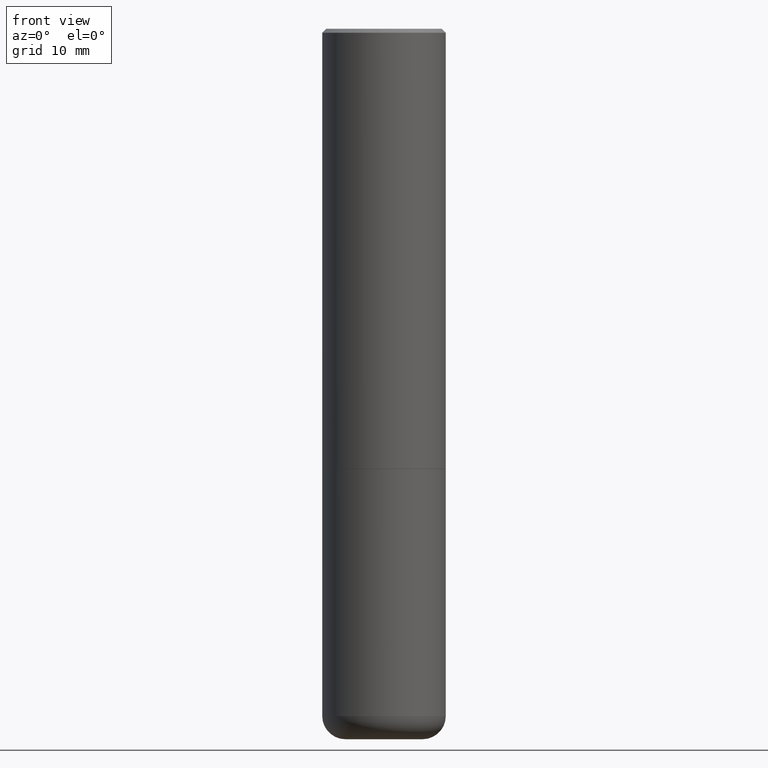
[diagram: clean part render]
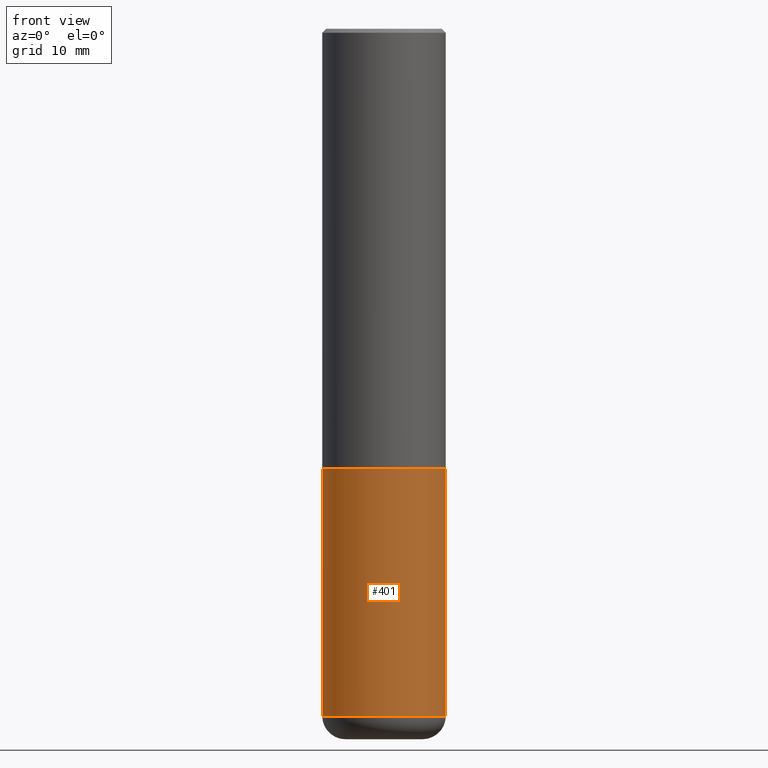
[diagram: same view with one face highlighted and labeled with its STEP entity id]
A machine part, front view. The second image highlights one B-rep face of the part: STEP entity #401.
In plain terms, the highlighted cylindrical surface (partial cylindrical patch) has radius 7.9997 mm, axis along (-0, 0, 1).
Its self-contained STEP definition (entity closure, byte-faithful):
#4 = ORIENTED_EDGE ( 'NONE', *, *, #72, .F. ) ;
#14 = LINE ( 'NONE', #132, #363 ) ;
#18 = ORIENTED_EDGE ( 'NONE', *, *, #285, .T. ) ;
#23 = DIRECTION ( 'NONE',  ( 1.000000000000000000, -6.982962677686266711E-15, 4.876176775795936353E-29 ) ) ;
#36 = LINE ( 'NONE', #161, #99 ) ;
#63 = CARTESIAN_POINT ( 'NONE',  ( -0.3149500000000000077, -7.796488447491823147E-15, -2.243999999999999773 ) ) ;
#72 = EDGE_CURVE ( 'NONE', #206, #268, #14, .T. ) ;
#73 = AXIS2_PLACEMENT_3D ( 'NONE', #417, #124, #241 ) ;
#76 = CARTESIAN_POINT ( 'NONE',  ( 0.000000000000000000, 0.000000000000000000, 0.000000000000000000 ) ) ;
#99 = VECTOR ( 'NONE', #388, 39.37007874015748143 ) ;
#104 = VERTEX_POINT ( 'NONE', #126 ) ;
#105 = CIRCLE ( 'NONE', #73, 0.3149500000000000077 ) ;
#111 = ORIENTED_EDGE ( 'NONE', *, *, #189, .F. ) ;
#124 = DIRECTION ( 'NONE',  ( -2.445468806185136597E-29, 3.491481338843145583E-15, 1.000000000000000000 ) ) ;
#126 = CARTESIAN_POINT ( 'NONE',  ( 0.3149499999999998967, -1.443308555850978615E-14, -3.503899999999999793 ) ) ;
#129 = CARTESIAN_POINT ( 'NONE',  ( -0.3149499999999998967, -9.995947116896063452E-15, -3.503899999999999793 ) ) ;
#132 = CARTESIAN_POINT ( 'NONE',  ( -0.3149500000000000077, 2.237854346276435590E-15, -1.549218606675782676E-29 ) ) ;
#161 = CARTESIAN_POINT ( 'NONE',  ( 0.3149500000000000077, -2.199284095337289871E-15, 1.535751875536930130E-29 ) ) ;
#185 = EDGE_LOOP ( 'NONE', ( #4, #18, #265, #111 ) ) ;
#189 = EDGE_CURVE ( 'NONE', #268, #260, #372, .T. ) ;
#206 = VERTEX_POINT ( 'NONE', #129 ) ;
#207 = CARTESIAN_POINT ( 'NONE',  ( 5.487632001079445967E-29, -7.834884124364017250E-15, -2.243999999999999773 ) ) ;
#224 = DIRECTION ( 'NONE',  ( 1.000000000000000000, -6.982962677686266711E-15, 0.000000000000000000 ) ) ;
#229 = AXIS2_PLACEMENT_3D ( 'NONE', #207, #338, #224 ) ;
#241 = DIRECTION ( 'NONE',  ( 1.000000000000000000, -6.982962677686263555E-15, 0.000000000000000000 ) ) ;
#255 = DIRECTION ( 'NONE',  ( -2.445468806185136597E-29, 3.491481338843145583E-15, 1.000000000000000000 ) ) ;
#260 = VERTEX_POINT ( 'NONE', #350 ) ;
#265 = ORIENTED_EDGE ( 'NONE', *, *, #303, .T. ) ;
#268 = VERTEX_POINT ( 'NONE', #63 ) ;
#285 = EDGE_CURVE ( 'NONE', #206, #104, #105, .T. ) ;
#288 = DIRECTION ( 'NONE',  ( -2.445468806185136877E-29, 3.491481338843145188E-15, 1.000000000000000000 ) ) ;
#293 = CYLINDRICAL_SURFACE ( 'NONE', #316, 0.3149500000000000077 ) ;
#303 = EDGE_CURVE ( 'NONE', #104, #260, #36, .T. ) ;
#316 = AXIS2_PLACEMENT_3D ( 'NONE', #76, #255, #23 ) ;
#338 = DIRECTION ( 'NONE',  ( -2.445468806185136597E-29, 3.491481338843145583E-15, 1.000000000000000000 ) ) ;
#350 = CARTESIAN_POINT ( 'NONE',  ( 0.3149500000000000077, -1.003416821970130712E-14, -2.243999999999999773 ) ) ;
#363 = VECTOR ( 'NONE', #288, 39.37007874015748143 ) ;
#367 = FACE_OUTER_BOUND ( 'NONE', #185, .T. ) ;
#372 = CIRCLE ( 'NONE', #229, 0.3149500000000000077 ) ;
#388 = DIRECTION ( 'NONE',  ( -2.445468806185136877E-29, 3.491481338843145188E-15, 1.000000000000000000 ) ) ;
#401 = ADVANCED_FACE ( 'NONE', ( #367 ), #293, .T. ) ;
#417 = CARTESIAN_POINT ( 'NONE',  ( 8.568678149992099474E-29, -1.223380146317249786E-14, -3.503899999999999793 ) ) ;